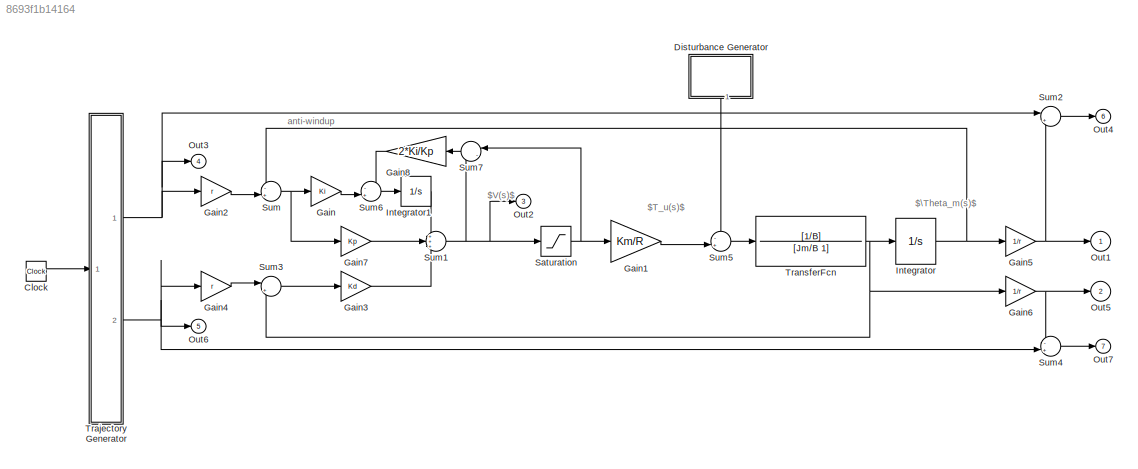
MODEL slx_8693f1b14164
KIND model
CONFIG AbsTol = auto
CONFIG EnableMultiTasking = off
CONFIG FixedStep = auto
CONFIG MaxStep = auto
CONFIG MinStep = auto
CONFIG PreLoadFcn = initModelData\ntrajectoryData\ncontrolPID
CONFIG RelTol = 1e-3
CONFIG SampleTimeConstraint = Unconstrained
CONFIG SolverName = VariableStepAuto
CONFIG StartFcn = controlPID
CONFIG StartTime = 0.0
CONFIG StopTime = 1.5
BLOCK [Clock] Clock
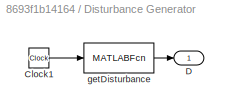
BLOCK [SubSystem] Disturbance Generator
  NameLocation = left
  Ports = [0, 1]
  RequestExecContextInheritance = off
BLOCK [Clock] Disturbance Generator/Clock1
BLOCK [Outport] Disturbance Generator/D
BLOCK [MATLABFcn] Disturbance Generator/getDisturbance
  MATLABFcn = getDisturbance
  Ports = [1, 1]
BLOCK [Gain] Gain
  Gain = Ki
BLOCK [Gain] Gain1
  Gain = Km/R
BLOCK [Gain] Gain2
  Gain = r
BLOCK [Gain] Gain3
  Gain = Kd
BLOCK [Gain] Gain4
  Gain = r
BLOCK [Gain] Gain5
  Gain = 1/r
BLOCK [Gain] Gain6
  Gain = 1/r
BLOCK [Gain] Gain7
  Gain = Kp
BLOCK [Gain] Gain8
  Gain = 2*Ki/Kp
BLOCK [Integrator] Integrator
  Ports = [1, 1]
BLOCK [Integrator] Integrator1
  Ports = [1, 1]
BLOCK [Outport] Out1
  SignalName = position
BLOCK [Outport] Out2
  Port = 3
  SignalName = V
BLOCK [Outport] Out3
  Port = 4
  SignalName = position_ref
BLOCK [Outport] Out4
  Port = 6
  SignalName = error_position
BLOCK [Outport] Out5
  Port = 2
  SignalName = velocity
BLOCK [Outport] Out6
  Port = 5
  SignalName = velocity_ref
BLOCK [Outport] Out7
  Port = 7
  SignalName = error_velocity
BLOCK [Saturate] Saturation
  LowerLimit = -35
  UpperLimit = 35
BLOCK [Sum] Sum
  Inputs = -+|
  Ports = [2, 1]
BLOCK [Sum] Sum1
  Inputs = +++
  Ports = [3, 1]
BLOCK [Sum] Sum2
  Inputs = |+-
  Ports = [2, 1]
BLOCK [Sum] Sum3
  Inputs = |+-
  Ports = [2, 1]
BLOCK [Sum] Sum4
  Inputs = -+|
  Ports = [2, 1]
BLOCK [Sum] Sum5
  Inputs = -+|
  Ports = [2, 1]
BLOCK [Sum] Sum6
  Inputs = -+|
  Ports = [2, 1]
BLOCK [Sum] Sum7
  Inputs = |-+
  Ports = [2, 1]
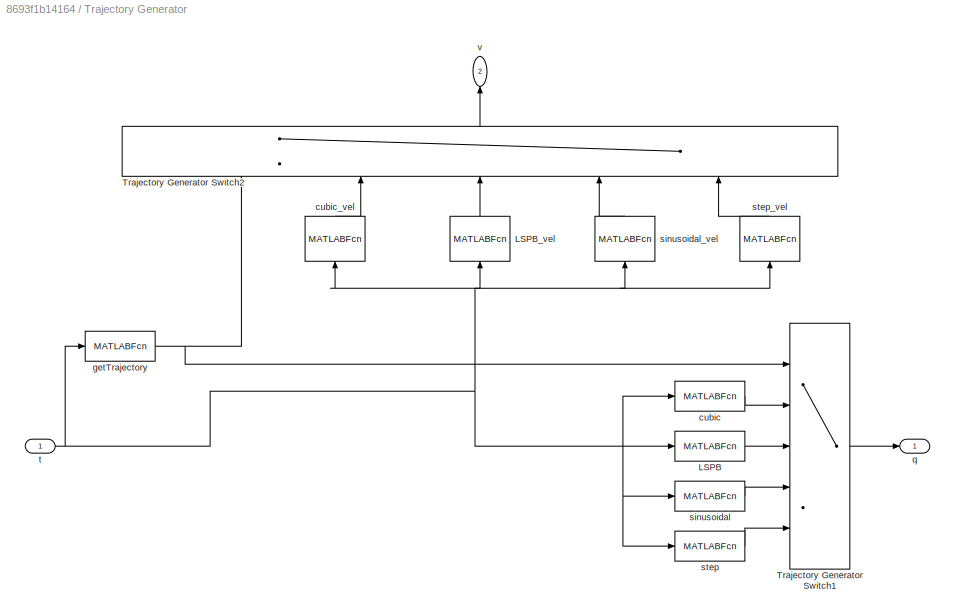
BLOCK [SubSystem] Trajectory Generator
  Ports = [1, 2]
  RequestExecContextInheritance = off
BLOCK [MATLABFcn] Trajectory Generator/LSPB
  MATLABFcn = LSPB
  Ports = [1, 1]
BLOCK [MATLABFcn] Trajectory Generator/LSPB_vel
  MATLABFcn = LSPB_vel
  NameLocation = right
  Ports = [1, 1]
BLOCK [MultiPortSwitch] Trajectory Generator/Trajectory Generator Switch1
  DataPortIndices = {CUBIC_,LSPB_,SINUSOIDAL_,STEP_}
  DataPortOrder = Specify indices
  InputSameDT = off
  Inputs = 4
  Ports = [5, 1]
  SaturateOnIntegerOverflow = off
BLOCK [MultiPortSwitch] Trajectory Generator/Trajectory Generator Switch2
  DataPortIndices = {CUBIC_,LSPB_,SINUSOIDAL_,STEP_}
  DataPortOrder = Specify indices
  InputSameDT = off
  Inputs = 4
  NameLocation = right
  Ports = [5, 1]
  SaturateOnIntegerOverflow = off
BLOCK [MATLABFcn] Trajectory Generator/cubic
  MATLABFcn = cubic
  Ports = [1, 1]
BLOCK [MATLABFcn] Trajectory Generator/cubic_vel
  MATLABFcn = cubic_vel
  NameLocation = right
  Ports = [1, 1]
BLOCK [MATLABFcn] Trajectory Generator/getTrajectory
  MATLABFcn = getTrajectory
  Ports = [1, 1]
BLOCK [Outport] Trajectory Generator/q
BLOCK [MATLABFcn] Trajectory Generator/sinusoidal
  MATLABFcn = sinusoidal
  Ports = [1, 1]
BLOCK [MATLABFcn] Trajectory Generator/sinusoidal_vel
  MATLABFcn = sinusoidal_vel
  NameLocation = right
  Ports = [1, 1]
BLOCK [MATLABFcn] Trajectory Generator/step
  MATLABFcn = step
  Ports = [1, 1]
BLOCK [MATLABFcn] Trajectory Generator/step_vel
  MATLABFcn = step_vel
  NameLocation = right
  Ports = [1, 1]
BLOCK [Inport] Trajectory Generator/t
BLOCK [Outport] Trajectory Generator/v
  NameLocation = right
  Port = 2
BLOCK [TransferFcn] TransferFcn
  Denominator = [Jm/B 1]
  Numerator = [1/B]
ANNOTATION (root): $T_u(s)$
ANNOTATION (root): $\Theta_m(s)$
ANNOTATION (root): $V(s)$
ANNOTATION (root): anti-windup
LINE Clock:1 -> Trajectory Generator:1
LINE Disturbance Generator/Clock1:1 -> Disturbance Generator/getDisturbance:1
LINE Disturbance Generator/getDisturbance:1 -> Disturbance Generator/D:1
LINE Disturbance Generator:1 -> Sum5:1
LINE Gain1:1 -> Sum5:2
LINE Gain2:1 -> Sum:2
LINE Gain3:1 -> Sum1:3
LINE Gain4:1 -> Sum3:1
NET Gain5:1 -> Out1:1, Sum2:2
NET Gain6:1 -> Out5:1, Sum4:1
LINE Gain7:1 -> Sum1:2
LINE Gain8:1 -> Sum6:1
LINE Gain:1 -> Sum6:2
LINE Integrator1:1 -> Sum1:1
NET Integrator:1 -> Gain5:1, Sum:1
NET Saturation:1 -> Gain1:1, Sum7:1
NET Sum1:1 -> Out2:1, Saturation:1, Sum7:2
LINE Sum2:1 -> Out4:1
LINE Sum3:1 -> Gain3:1
LINE Sum4:1 -> Out7:1
LINE Sum5:1 -> TransferFcn:1
LINE Sum6:1 -> Integrator1:1
LINE Sum7:1 -> Gain8:1
NET Sum:1 -> Gain7:1, Gain:1
LINE Trajectory Generator/LSPB:1 -> Trajectory Generator/Trajectory Generator Switch1:3
LINE Trajectory Generator/LSPB_vel:1 -> Trajectory Generator/Trajectory Generator Switch2:3
LINE Trajectory Generator/Trajectory Generator Switch1:1 -> Trajectory Generator/q:1
LINE Trajectory Generator/Trajectory Generator Switch2:1 -> Trajectory Generator/v:1
LINE Trajectory Generator/cubic:1 -> Trajectory Generator/Trajectory Generator Switch1:2
LINE Trajectory Generator/cubic_vel:1 -> Trajectory Generator/Trajectory Generator Switch2:2
NET Trajectory Generator/getTrajectory:1 -> Trajectory Generator/Trajectory Generator Switch1:1, Trajectory Generator/Trajectory Generator Switch2:1
LINE Trajectory Generator/sinusoidal:1 -> Trajectory Generator/Trajectory Generator Switch1:4
LINE Trajectory Generator/sinusoidal_vel:1 -> Trajectory Generator/Trajectory Generator Switch2:4
LINE Trajectory Generator/step:1 -> Trajectory Generator/Trajectory Generator Switch1:5
LINE Trajectory Generator/step_vel:1 -> Trajectory Generator/Trajectory Generator Switch2:5
NET Trajectory Generator/t:1 -> Trajectory Generator/LSPB:1, Trajectory Generator/LSPB_vel:1, Trajectory Generator/cubic:1, Trajectory Generator/cubic_vel:1, Trajectory Generator/getTrajectory:1, Trajectory Generator/sinusoidal:1, Trajectory Generator/sinusoidal_vel:1, Trajectory Generator/step:1, Trajectory Generator/step_vel:1
NET Trajectory Generator:1 -> Gain2:1, Out3:1, Sum2:1
NET Trajectory Generator:2 -> Gain4:1, Out6:1, Sum4:2
NET TransferFcn:1 -> Gain6:1, Integrator:1, Sum3:2
note: NET lines group one-source signal fan-out (src -> all destinations, sorted); 1:1 wires keep LINE
